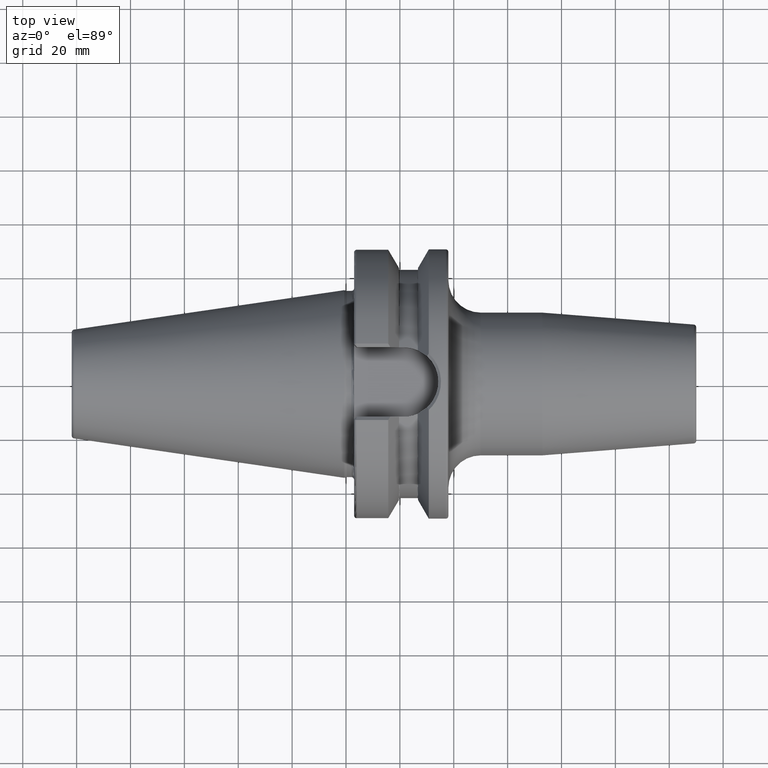
[diagram: clean part render]
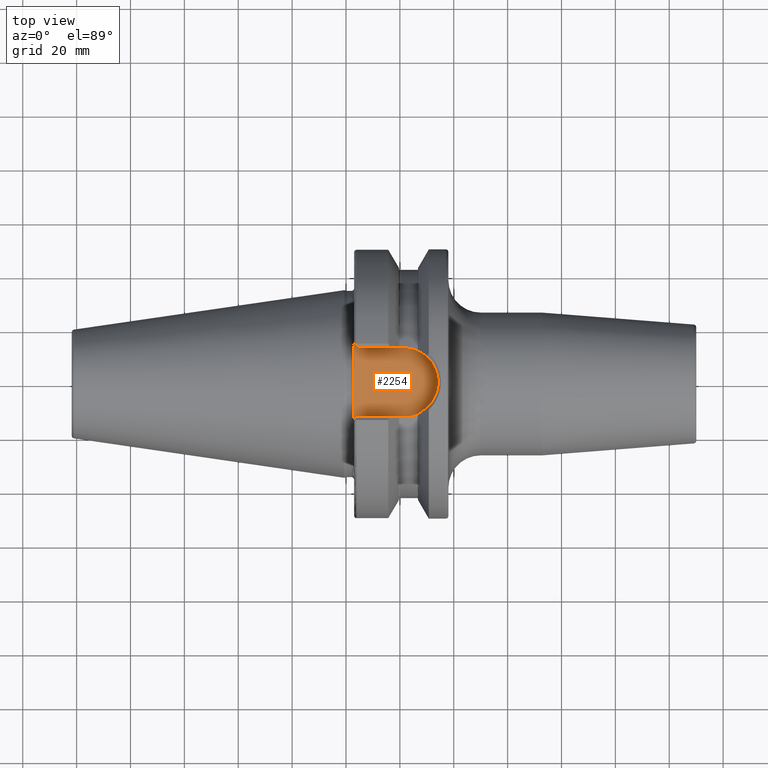
[diagram: same view with one face highlighted and labeled with its STEP entity id]
A machine part, top view. The second image highlights one B-rep face of the part: STEP entity #2254.
In plain terms, the highlighted planar face has unit normal (0, 0, 1).
Its self-contained STEP definition (entity closure, byte-faithful):
#675=DIRECTION('',(1.E0,0.E0,0.E0));
#676=VECTOR('',#675,1.73475E1);
#677=CARTESIAN_POINT('',(4.E0,-1.29025E1,3.52E1));
#678=LINE('',#677,#676);
#679=DIRECTION('',(0.E0,1.E0,0.E0));
#680=VECTOR('',#679,8.750740591798E0);
#681=CARTESIAN_POINT('',(3.E0,-1.39025E1,3.52E1));
#682=LINE('',#681,#680);
#683=DIRECTION('',(0.E0,1.E0,0.E0));
#684=VECTOR('',#683,8.750740591798E0);
#685=CARTESIAN_POINT('',(3.E0,5.151759408202E0,3.52E1));
#686=LINE('',#685,#684);
#687=DIRECTION('',(-1.E0,0.E0,0.E0));
#688=VECTOR('',#687,1.73475E1);
#689=CARTESIAN_POINT('',(2.13475E1,1.29025E1,3.52E1));
#690=LINE('',#689,#688);
#691=CARTESIAN_POINT('',(2.13475E1,0.E0,3.52E1));
#692=DIRECTION('',(0.E0,0.E0,1.E0));
#693=DIRECTION('',(0.E0,-1.E0,0.E0));
#694=AXIS2_PLACEMENT_3D('',#691,#692,#693);
#700=DIRECTION('',(7.071067811865E-1,7.071067811865E-1,0.E0));
#701=VECTOR('',#700,1.414213562373E0);
#702=CARTESIAN_POINT('',(3.E0,-1.39025E1,3.52E1));
#703=LINE('',#702,#701);
#709=CARTESIAN_POINT('',(3.E0,-5.151759408202E0,3.52E1));
#710=CARTESIAN_POINT('',(3.E0,-4.661054534839E0,3.52E1));
#711=CARTESIAN_POINT('',(2.985185415825E0,-3.679726334521E0,3.52E1));
#712=CARTESIAN_POINT('',(2.950323079566E0,-2.207949548308E0,3.52E1));
#713=CARTESIAN_POINT('',(2.926055980582E0,-7.360772184078E-1,3.52E1));
#714=CARTESIAN_POINT('',(2.926055295138E0,7.360096394602E-1,3.52E1));
#715=CARTESIAN_POINT('',(2.950321957583E0,2.207902450145E0,3.52E1));
#716=CARTESIAN_POINT('',(2.985185074234E0,3.679708044881E0,3.52E1));
#717=CARTESIAN_POINT('',(3.E0,4.661048861273E0,3.52E1));
#718=CARTESIAN_POINT('',(3.E0,5.151759408202E0,3.52E1));
#725=DIRECTION('',(-7.071067811865E-1,7.071067811865E-1,0.E0));
#726=VECTOR('',#725,1.414213562373E0);
#727=CARTESIAN_POINT('',(4.E0,1.29025E1,3.52E1));
#728=LINE('',#727,#726);
#1306=CARTESIAN_POINT('',(2.13475E1,-1.29025E1,3.52E1));
#1307=CARTESIAN_POINT('',(2.13475E1,1.29025E1,3.52E1));
#1308=VERTEX_POINT('',#1306);
#1309=VERTEX_POINT('',#1307);
#1310=CARTESIAN_POINT('',(3.E0,5.151759408202E0,3.52E1));
#1311=VERTEX_POINT('',#1310);
#1312=CARTESIAN_POINT('',(3.E0,-5.151759408202E0,3.52E1));
#1313=VERTEX_POINT('',#1312);
#1347=CARTESIAN_POINT('',(4.E0,-1.29025E1,3.52E1));
#1349=VERTEX_POINT('',#1347);
#1351=CARTESIAN_POINT('',(3.E0,-1.39025E1,3.52E1));
#1353=VERTEX_POINT('',#1351);
#1360=CARTESIAN_POINT('',(3.E0,1.39025E1,3.52E1));
#1361=VERTEX_POINT('',#1360);
#1362=CARTESIAN_POINT('',(4.E0,1.29025E1,3.52E1));
#1364=VERTEX_POINT('',#1362);
#2236=CARTESIAN_POINT('',(0.E0,0.E0,3.52E1));
#2237=DIRECTION('',(0.E0,0.E0,1.E0));
#2238=DIRECTION('',(1.E0,0.E0,0.E0));
#2239=AXIS2_PLACEMENT_3D('',#2236,#2237,#2238);
#2240=PLANE('',#2239);
#2241=ORIENTED_EDGE('',*,*,#1990,.F.);
#2243=ORIENTED_EDGE('',*,*,#2242,.F.);
#2244=ORIENTED_EDGE('',*,*,#1601,.T.);
#2246=ORIENTED_EDGE('',*,*,#2245,.T.);
#2247=ORIENTED_EDGE('',*,*,#1579,.T.);
#2249=ORIENTED_EDGE('',*,*,#2248,.F.);
#2250=ORIENTED_EDGE('',*,*,#2227,.F.);
#2251=ORIENTED_EDGE('',*,*,#1961,.F.);
#2252=EDGE_LOOP('',(#2241,#2243,#2244,#2246,#2247,#2249,#2250,#2251));
#2253=FACE_OUTER_BOUND('',#2252,.F.);
#2254=ADVANCED_FACE('',(#2253),#2240,.T.);
#695=CIRCLE('',#694,1.29025E1);
#719=B_SPLINE_CURVE_WITH_KNOTS('',3,(#709,#710,#711,#712,#713,#714,#715,#716,
#717,#718),.UNSPECIFIED.,.F.,.F.,(4,1,1,1,1,1,1,4),(0.E0,1.428571428571E-1,
2.857142857143E-1,4.285714285714E-1,5.714285714286E-1,7.142857142857E-1,
8.571428571429E-1,1.E0),.UNSPECIFIED.);
#1579=EDGE_CURVE('',#1311,#1361,#686,.T.);
#1601=EDGE_CURVE('',#1353,#1313,#682,.T.);
#1961=EDGE_CURVE('',#1308,#1309,#695,.T.);
#1990=EDGE_CURVE('',#1349,#1308,#678,.T.);
#2227=EDGE_CURVE('',#1309,#1364,#690,.T.);
#2242=EDGE_CURVE('',#1353,#1349,#703,.T.);
#2245=EDGE_CURVE('',#1313,#1311,#719,.T.);
#2248=EDGE_CURVE('',#1364,#1361,#728,.T.);